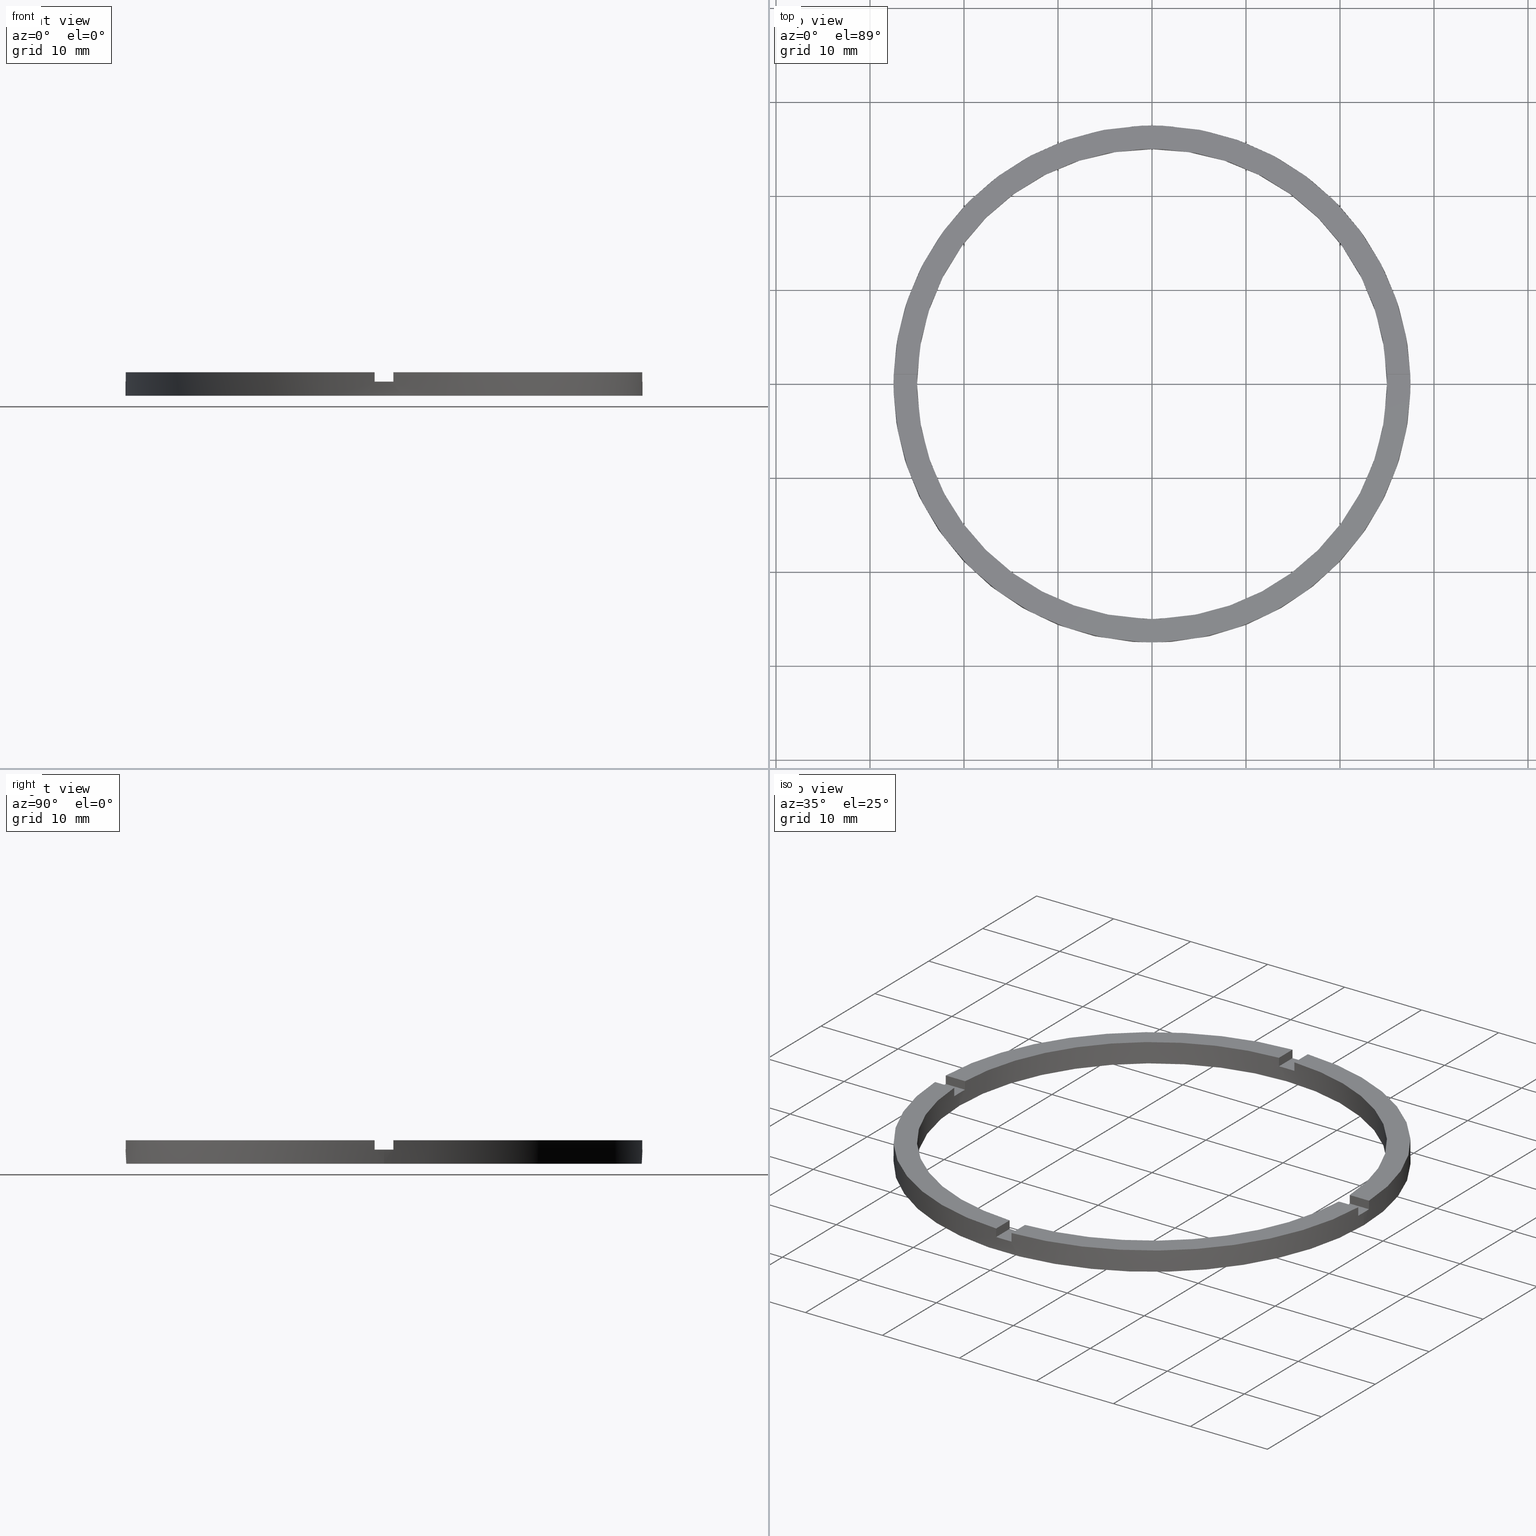
[diagram: canonical four-view strip — front | top / right | iso, engineering-drawing reading convention]
A machine part, canonical four-view strip (front | top / right | iso — engineering-drawing reading convention). The complete STEP part file that produces these views, byte-faithful:
ISO-10303-21;
HEADER;
FILE_DESCRIPTION (( 'STEP AP203' ),
    '1' );
FILE_NAME ('514115.step',
    '2024-12-26T02:38:56',
    ( 'MSI' ),
    ( '' ),
    'SwSTEP 2.0',
    'SolidWorks 2020',
    '' );
FILE_SCHEMA (( 'CONFIG_CONTROL_DESIGN' ));
ENDSEC;

DATA;
#1 = PRODUCT_DEFINITION ( 'δ֪', '', #14, #693 ) ;
#2 = COORDINATED_UNIVERSAL_TIME_OFFSET ( 8, 0, .AHEAD. ) ;
#3 = DIRECTION ( 'NONE',  ( 1.000000000000000000, 0.000000000000000000, 0.000000000000000000 ) ) ;
#4 = EDGE_CURVE ( 'NONE', #176, #85, #69, .T. ) ;
#5 = PERSON_AND_ORGANIZATION ( #19, #778 ) ;
#6 = LOCAL_TIME ( 10, 38, 56.00000000000000000, #511 ) ;
#7 = CARTESIAN_POINT ( 'NONE',  ( -17.50000000000018474, 0.9999999999999749090, 2.500000000000000000 ) ) ;
#8 = AXIS2_PLACEMENT_3D ( 'NONE', #655, #257, #367 ) ;
#9 = DATE_AND_TIME ( #523, #775 ) ;
#10 = CARTESIAN_POINT ( 'NONE',  ( 27.48181216732259458, 0.9999999999998430145, 2.500000000000000000 ) ) ;
#11 = APPROVAL_PERSON_ORGANIZATION ( #533, #635, #342 ) ;
#12 = COORDINATED_UNIVERSAL_TIME_OFFSET ( 8, 0, .AHEAD. ) ;
#13 = CARTESIAN_POINT ( 'NONE',  ( 27.50000000000000000, 3.367778697655221307E-15, 0.000000000000000000 ) ) ;
#14 = PRODUCT_DEFINITION_FORMATION_WITH_SPECIFIED_SOURCE ( '�κ�', '', #314, .NOT_KNOWN. ) ;
#15 = LOCAL_TIME ( 10, 38, 56.00000000000000000, #276 ) ;
#16 = LOCAL_TIME ( 10, 38, 56.00000000000000000, #267 ) ;
#17 = EDGE_CURVE ( 'NONE', #460, #621, #328, .T. ) ;
#18 = DIRECTION ( 'NONE',  ( -0.000000000000000000, -0.000000000000000000, -1.000000000000000000 ) ) ;
#19 = PERSON ( 'δָ��', 'δָ��', 'δָ��', ('δָ��'), ('δָ��'), ('δָ��') ) ;
#20 = AXIS2_PLACEMENT_3D ( 'NONE', #433, #81, #132 ) ;
#21 = DIRECTION ( 'NONE',  ( 0.000000000000000000, 0.000000000000000000, 1.000000000000000000 ) ) ;
#22 = DIRECTION ( 'NONE',  ( -0.000000000000000000, -0.000000000000000000, -1.000000000000000000 ) ) ;
#23 = CARTESIAN_POINT ( 'NONE',  ( -24.97999199359359679, 0.9999999999999735767, 2.500000000000000000 ) ) ;
#24 = PLANE ( 'NONE',  #411 ) ;
#25 = CARTESIAN_POINT ( 'NONE',  ( -1.000000000000026423, 17.50000000000000000, 2.500000000000000000 ) ) ;
#26 = EDGE_CURVE ( 'NONE', #460, #195, #579, .T. ) ;
#27 = DIRECTION ( 'NONE',  ( 1.000000000000000000, 0.000000000000000000, 0.000000000000000000 ) ) ;
#28 = DIRECTION ( 'NONE',  ( 0.000000000000000000, 0.000000000000000000, 1.000000000000000000 ) ) ;
#29 = EDGE_CURVE ( 'NONE', #210, #442, #581, .T. ) ;
#30 = DIRECTION ( 'NONE',  ( 1.000000000000000000, 0.000000000000000000, 0.000000000000000000 ) ) ;
#31 = PRODUCT_RELATED_PRODUCT_CATEGORY ( 'detail', '', ( #314 ) ) ;
#32 = DIRECTION ( 'NONE',  ( 0.000000000000000000, 0.000000000000000000, 1.000000000000000000 ) ) ;
#33 = DIRECTION ( 'NONE',  ( 1.301042606982605567E-16, -1.000000000000000000, 0.000000000000000000 ) ) ;
#34 = EDGE_CURVE ( 'NONE', #177, #114, #345, .T. ) ;
#35 = AXIS2_PLACEMENT_3D ( 'NONE', #435, #440, #227 ) ;
#36 = CARTESIAN_POINT ( 'NONE',  ( 0.000000000000000000, 0.000000000000000000, 1.500000000000000000 ) ) ;
#37 = DIRECTION ( 'NONE',  ( -0.000000000000000000, -0.000000000000000000, -1.000000000000000000 ) ) ;
#38 = AXIS2_PLACEMENT_3D ( 'NONE', #448, #484, #585 ) ;
#39 = EDGE_CURVE ( 'NONE', #199, #493, #331, .T. ) ;
#40 = DIRECTION ( 'NONE',  ( 1.000000000000000000, 0.000000000000000000, -0.000000000000000000 ) ) ;
#41 = CARTESIAN_POINT ( 'NONE',  ( -24.97999199359359679, 0.9999999999999735767, 1.500000000000000000 ) ) ;
#42 = AXIS2_PLACEMENT_3D ( 'NONE', #298, #112, #399 ) ;
#43 = PLANE ( 'NONE',  #294 ) ;
#44 = CARTESIAN_POINT ( 'NONE',  ( 0.000000000000000000, 0.000000000000000000, 1.500000000000000000 ) ) ;
#45 = DIRECTION ( 'NONE',  ( 1.000000000000000000, 0.000000000000000000, 0.000000000000000000 ) ) ;
#46 = DIRECTION ( 'NONE',  ( 0.000000000000000000, 0.000000000000000000, 1.000000000000000000 ) ) ;
#47 = DIRECTION ( 'NONE',  ( 0.000000000000000000, 0.000000000000000000, 1.000000000000000000 ) ) ;
#48 = DIRECTION ( 'NONE',  ( 1.000000000000000000, 0.000000000000000000, 0.000000000000000000 ) ) ;
#49 = DIRECTION ( 'NONE',  ( 0.000000000000000000, 0.000000000000000000, 1.000000000000000000 ) ) ;
#50 = CARTESIAN_POINT ( 'NONE',  ( 0.9999999999999735767, 27.48181216732259102, 2.500000000000000000 ) ) ;
#51 = DIRECTION ( 'NONE',  ( -0.000000000000000000, -0.000000000000000000, -1.000000000000000000 ) ) ;
#52 = EDGE_CURVE ( 'NONE', #713, #687, #65, .T. ) ;
#53 = CARTESIAN_POINT ( 'NONE',  ( 0.9999999999998389066, -17.50000000000018119, 2.500000000000000000 ) ) ;
#54 = CARTESIAN_POINT ( 'NONE',  ( 0.000000000000000000, 0.000000000000000000, 1.500000000000000000 ) ) ;
#55 = CIRCLE ( 'NONE', #110, 25.00000000000000000 ) ;
#56 = FACE_OUTER_BOUND ( 'NONE', #372, .T. ) ;
#57 = CARTESIAN_POINT ( 'NONE',  ( 0.9999999999999735767, 27.48181216732259102, 1.500000000000000000 ) ) ;
#58 = CIRCLE ( 'NONE', #174, 27.50000000000000000 ) ;
#59 = AXIS2_PLACEMENT_3D ( 'NONE', #544, #596, #709 ) ;
#60 = ORIENTED_EDGE ( 'NONE', *, *, #616, .F. ) ;
#61 = VECTOR ( 'NONE', #289, 1000.000000000000000 ) ;
#62 = FACE_OUTER_BOUND ( 'NONE', #231, .T. ) ;
#63 = VECTOR ( 'NONE', #771, 1000.000000000000000 ) ;
#64 = CARTESIAN_POINT ( 'NONE',  ( -1.000000000000160316, -24.97999199359358968, 1.500000000000000000 ) ) ;
#65 = LINE ( 'NONE', #615, #334 ) ;
#66 = CIRCLE ( 'NONE', #8, 25.00000000000000000 ) ;
#67 = LINE ( 'NONE', #25, #320 ) ;
#68 = CIRCLE ( 'NONE', #566, 25.00000000000000000 ) ;
#69 = CIRCLE ( 'NONE', #419, 27.50000000000000000 ) ;
#70 = VECTOR ( 'NONE', #105, 1000.000000000000000 ) ;
#71 = CARTESIAN_POINT ( 'NONE',  ( 0.9999999999999735767, 27.48181216732259102, 2.500000000000000000 ) ) ;
#72 = CARTESIAN_POINT ( 'NONE',  ( -27.50000000000000000, 0.000000000000000000, 2.500000000000000000 ) ) ;
#73 = VECTOR ( 'NONE', #429, 1000.000000000000000 ) ;
#74 = VERTEX_POINT ( 'NONE', #668 ) ;
#75 = FACE_OUTER_BOUND ( 'NONE', #719, .T. ) ;
#76 = ORIENTED_EDGE ( 'NONE', *, *, #667, .F. ) ;
#77 = LINE ( 'NONE', #712, #343 ) ;
#78 = ORIENTED_EDGE ( 'NONE', *, *, #301, .F. ) ;
#79 = PRODUCT_DEFINITION_SHAPE ( 'NONE', 'NONE',  #1 ) ;
#80 = VECTOR ( 'NONE', #415, 1000.000000000000000 ) ;
#81 = DIRECTION ( 'NONE',  ( 0.000000000000000000, 0.000000000000000000, 1.000000000000000000 ) ) ;
#82 = ORIENTED_EDGE ( 'NONE', *, *, #34, .F. ) ;
#83 = DIRECTION ( 'NONE',  ( -0.000000000000000000, -0.000000000000000000, -1.000000000000000000 ) ) ;
#84 = LINE ( 'NONE', #735, #92 ) ;
#85 = VERTEX_POINT ( 'NONE', #746 ) ;
#86 = LINE ( 'NONE', #7, #604 ) ;
#87 = PLANE ( 'NONE',  #514 ) ;
#88 = CARTESIAN_POINT ( 'NONE',  ( 0.9999999999998397948, -24.97999199359360034, 2.500000000000000000 ) ) ;
#89 = EDGE_CURVE ( 'NONE', #212, #713, #67, .T. ) ;
#90 = CARTESIAN_POINT ( 'NONE',  ( 0.000000000000000000, 0.000000000000000000, 1.500000000000000000 ) ) ;
#91 = AXIS2_PLACEMENT_3D ( 'NONE', #146, #471, #283 ) ;
#92 = VECTOR ( 'NONE', #476, 1000.000000000000000 ) ;
#93 = EDGE_CURVE ( 'NONE', #212, #493, #326, .T. ) ;
#94 = DIRECTION ( 'NONE',  ( 1.000000000000000000, 0.000000000000000000, 0.000000000000000000 ) ) ;
#95 = ORIENTED_EDGE ( 'NONE', *, *, #701, .T. ) ;
#96 = DIRECTION ( 'NONE',  ( 1.000000000000000000, 0.000000000000000000, 0.000000000000000000 ) ) ;
#97 = DIRECTION ( 'NONE',  ( 1.301042606982605567E-16, -1.000000000000000000, 0.000000000000000000 ) ) ;
#98 = ORIENTED_EDGE ( 'NONE', *, *, #555, .F. ) ;
#99 = APPLICATION_CONTEXT ( 'configuration controlled 3d designs of mechanical parts and assemblies' ) ;
#100 = CC_DESIGN_PERSON_AND_ORGANIZATION_ASSIGNMENT ( #516, #351, ( #752 ) ) ;
#101 = ORIENTED_EDGE ( 'NONE', *, *, #627, .T. ) ;
#102 = CARTESIAN_POINT ( 'NONE',  ( 0.000000000000000000, 0.000000000000000000, 2.500000000000000000 ) ) ;
#103 = DIRECTION ( 'NONE',  ( -1.000000000000000000, 0.000000000000000000, 0.000000000000000000 ) ) ;
#104 = ORIENTED_EDGE ( 'NONE', *, *, #592, .F. ) ;
#105 = DIRECTION ( 'NONE',  ( 1.000000000000000000, 1.734723475976807341E-16, -0.000000000000000000 ) ) ;
#106 = DIRECTION ( 'NONE',  ( 1.000000000000000000, -0.000000000000000000, 0.000000000000000000 ) ) ;
#107 = VERTEX_POINT ( 'NONE', #158 ) ;
#108 = CARTESIAN_POINT ( 'NONE',  ( -27.48181216732259102, 0.9999999999999731326, 2.500000000000000000 ) ) ;
#109 = EDGE_LOOP ( 'NONE', ( #380, #483, #134, #82 ) ) ;
#110 = AXIS2_PLACEMENT_3D ( 'NONE', #502, #118, #123 ) ;
#111 = CARTESIAN_POINT ( 'NONE',  ( -27.48181216732259102, -1.000000000000026867, 1.500000000000000000 ) ) ;
#112 = DIRECTION ( 'NONE',  ( 0.000000000000000000, 0.000000000000000000, 1.000000000000000000 ) ) ;
#113 = ORIENTED_EDGE ( 'NONE', *, *, #26, .T. ) ;
#114 = VERTEX_POINT ( 'NONE', #111 ) ;
#115 = DIRECTION ( 'NONE',  ( 0.000000000000000000, 0.000000000000000000, 1.000000000000000000 ) ) ;
#116 = VERTEX_POINT ( 'NONE', #178 ) ;
#117 = ORIENTED_EDGE ( 'NONE', *, *, #304, .T. ) ;
#118 = DIRECTION ( 'NONE',  ( 0.000000000000000000, 0.000000000000000000, 1.000000000000000000 ) ) ;
#119 = EDGE_CURVE ( 'NONE', #196, #199, #577, .T. ) ;
#120 = DIRECTION ( 'NONE',  ( -1.000000000000000000, 0.000000000000000000, 0.000000000000000000 ) ) ;
#121 = ADVANCED_FACE ( 'NONE', ( #574 ), #597, .T. ) ;
#122 = ORIENTED_EDGE ( 'NONE', *, *, #531, .F. ) ;
#123 = DIRECTION ( 'NONE',  ( 1.000000000000000000, 0.000000000000000000, 0.000000000000000000 ) ) ;
#124 = VERTEX_POINT ( 'NONE', #409 ) ;
#125 = AXIS2_PLACEMENT_3D ( 'NONE', #416, #253, #412 ) ;
#126 = VERTEX_POINT ( 'NONE', #373 ) ;
#127 = EDGE_CURVE ( 'NONE', #116, #126, #338, .T. ) ;
#128 = EDGE_CURVE ( 'NONE', #336, #737, #86, .T. ) ;
#129 = EDGE_LOOP ( 'NONE', ( #223, #113, #690, #451, #434, #190, #733, #628, #168, #208, #630, #173 ) ) ;
#130 = AXIS2_PLACEMENT_3D ( 'NONE', #665, #734, #272 ) ;
#131 = ORIENTED_EDGE ( 'NONE', *, *, #389, .F. ) ;
#132 = DIRECTION ( 'NONE',  ( 1.000000000000000000, 0.000000000000000000, -0.000000000000000000 ) ) ;
#133 = DIRECTION ( 'NONE',  ( -0.000000000000000000, -1.000000000000000000, -0.000000000000000000 ) ) ;
#134 = ORIENTED_EDGE ( 'NONE', *, *, #379, .F. ) ;
#135 = ADVANCED_FACE ( 'NONE', ( #349 ), #553, .F. ) ;
#136 = ORIENTED_EDGE ( 'NONE', *, *, #149, .T. ) ;
#137 = ORIENTED_EDGE ( 'NONE', *, *, #616, .T. ) ;
#138 = DIRECTION ( 'NONE',  ( -0.000000000000000000, -0.000000000000000000, -1.000000000000000000 ) ) ;
#139 = AXIS2_PLACEMENT_3D ( 'NONE', #159, #538, #96 ) ;
#140 = DIRECTION ( 'NONE',  ( 1.000000000000000000, 0.000000000000000000, 0.000000000000000000 ) ) ;
#141 = DIRECTION ( 'NONE',  ( -0.000000000000000000, 0.000000000000000000, 1.000000000000000000 ) ) ;
#142 = VECTOR ( 'NONE', #629, 1000.000000000000000 ) ;
#143 = APPLICATION_PROTOCOL_DEFINITION ( 'international standard', 'config_control_design', 1994, #99 ) ;
#144 = CARTESIAN_POINT ( 'NONE',  ( -27.48181216732259102, -1.000000000000026867, 2.500000000000000000 ) ) ;
#145 = CARTESIAN_POINT ( 'NONE',  ( 0.000000000000000000, 0.000000000000000000, 2.500000000000000000 ) ) ;
#146 = CARTESIAN_POINT ( 'NONE',  ( -17.50000000000018474, -1.000000000000025091, 1.500000000000000000 ) ) ;
#147 = DIRECTION ( 'NONE',  ( -0.000000000000000000, 0.000000000000000000, 1.000000000000000000 ) ) ;
#148 = CARTESIAN_POINT ( 'NONE',  ( 27.48181216732259458, 0.9999999999998430145, 1.500000000000000000 ) ) ;
#149 = EDGE_CURVE ( 'NONE', #698, #85, #608, .T. ) ;
#150 = APPROVAL_STATUS ( 'not_yet_approved' ) ;
#151 = PLANE ( 'NONE',  #663 ) ;
#152 = LINE ( 'NONE', #72, #426 ) ;
#153 = ORIENTED_EDGE ( 'NONE', *, *, #128, .F. ) ;
#154 = VECTOR ( 'NONE', #258, 1000.000000000000000 ) ;
#155 = EDGE_CURVE ( 'NONE', #176, #465, #84, .T. ) ;
#156 = AXIS2_PLACEMENT_3D ( 'NONE', #565, #636, #567 ) ;
#157 = CARTESIAN_POINT ( 'NONE',  ( 0.000000000000000000, 0.000000000000000000, 0.000000000000000000 ) ) ;
#158 = CARTESIAN_POINT ( 'NONE',  ( 24.97999199359358968, -1.000000000000157208, 1.500000000000000000 ) ) ;
#159 = CARTESIAN_POINT ( 'NONE',  ( 0.000000000000000000, 0.000000000000000000, 2.500000000000000000 ) ) ;
#160 = LINE ( 'NONE', #53, #671 ) ;
#161 = EDGE_CURVE ( 'NONE', #116, #460, #359, .T. ) ;
#162 = EDGE_CURVE ( 'NONE', #219, #388, #77, .T. ) ;
#163 = CIRCLE ( 'NONE', #139, 27.50000000000000000 ) ;
#164 = CARTESIAN_POINT ( 'NONE',  ( 25.00000000000000000, 3.061616997868383043E-15, 0.000000000000000000 ) ) ;
#165 = VERTEX_POINT ( 'NONE', #303 ) ;
#166 = LINE ( 'NONE', #23, #154 ) ;
#167 = CARTESIAN_POINT ( 'NONE',  ( -1.000000000000026423, 27.48181216732259102, 2.500000000000000000 ) ) ;
#168 = ORIENTED_EDGE ( 'NONE', *, *, #39, .F. ) ;
#169 = CARTESIAN_POINT ( 'NONE',  ( 27.48181216732259458, 0.9999999999998430145, 2.500000000000000000 ) ) ;
#170 = ORIENTED_EDGE ( 'NONE', *, *, #155, .T. ) ;
#171 = AXIS2_PLACEMENT_3D ( 'NONE', #643, #454, #48 ) ;
#172 = DIRECTION ( 'NONE',  ( -1.301042606982605567E-16, 1.000000000000000000, 0.000000000000000000 ) ) ;
#173 = ORIENTED_EDGE ( 'NONE', *, *, #667, .T. ) ;
#174 = AXIS2_PLACEMENT_3D ( 'NONE', #750, #386, #30 ) ;
#175 = EDGE_CURVE ( 'NONE', #463, #644, #347, .T. ) ;
#176 = VERTEX_POINT ( 'NONE', #587 ) ;
#177 = VERTEX_POINT ( 'NONE', #646 ) ;
#178 = CARTESIAN_POINT ( 'NONE',  ( 27.48181216732258392, -1.000000000000157208, 1.500000000000000000 ) ) ;
#179 = CARTESIAN_POINT ( 'NONE',  ( -1.000000000000160316, -24.97999199359358968, 2.500000000000000000 ) ) ;
#180 = EDGE_LOOP ( 'NONE', ( #104, #201, #350, #696 ) ) ;
#181 = EDGE_LOOP ( 'NONE', ( #619, #363, #496, #747, #60, #500 ) ) ;
#182 = VERTEX_POINT ( 'NONE', #609 ) ;
#183 = AXIS2_PLACEMENT_3D ( 'NONE', #550, #547, #46 ) ;
#184 = VERTEX_POINT ( 'NONE', #362 ) ;
#185 = CARTESIAN_POINT ( 'NONE',  ( 24.97999199359358968, -1.000000000000157208, 2.500000000000000000 ) ) ;
#186 = ORIENTED_EDGE ( 'NONE', *, *, #308, .F. ) ;
#187 = ORIENTED_EDGE ( 'NONE', *, *, #781, .F. ) ;
#188 = CARTESIAN_POINT ( 'NONE',  ( -1.000000000000026423, 27.48181216732259102, 1.500000000000000000 ) ) ;
#189 = DIRECTION ( 'NONE',  ( -1.301042606982605567E-16, 1.000000000000000000, -0.000000000000000000 ) ) ;
#190 = ORIENTED_EDGE ( 'NONE', *, *, #653, .T. ) ;
#191 = DIRECTION ( 'NONE',  ( -0.000000000000000000, -0.000000000000000000, -1.000000000000000000 ) ) ;
#192 = ORIENTED_EDGE ( 'NONE', *, *, #531, .T. ) ;
#193 = EDGE_LOOP ( 'NONE', ( #642, #676, #748, #432, #136, #708, #170, #715, #710, #760, #722, #192 ) ) ;
#194 = ORIENTED_EDGE ( 'NONE', *, *, #282, .T. ) ;
#195 = VERTEX_POINT ( 'NONE', #13 ) ;
#196 = VERTEX_POINT ( 'NONE', #422 ) ;
#197 = EDGE_CURVE ( 'NONE', #458, #184, #55, .T. ) ;
#198 = CARTESIAN_POINT ( 'NONE',  ( 27.50000000000000000, 3.367778697655221307E-15, 1.500000000000000000 ) ) ;
#199 = VERTEX_POINT ( 'NONE', #57 ) ;
#200 = CARTESIAN_POINT ( 'NONE',  ( -1.000000000000026423, 27.48181216732259102, 2.500000000000000000 ) ) ;
#201 = ORIENTED_EDGE ( 'NONE', *, *, #197, .F. ) ;
#202 = DIRECTION ( 'NONE',  ( -1.000000000000000000, -1.301042606982605567E-16, 0.000000000000000000 ) ) ;
#203 = ORIENTED_EDGE ( 'NONE', *, *, #626, .T. ) ;
#204 = CARTESIAN_POINT ( 'NONE',  ( 0.000000000000000000, 0.000000000000000000, 1.500000000000000000 ) ) ;
#205 = VERTEX_POINT ( 'NONE', #64 ) ;
#206 = DIRECTION ( 'NONE',  ( 1.000000000000000000, 0.000000000000000000, 0.000000000000000000 ) ) ;
#207 = EDGE_CURVE ( 'NONE', #107, #165, #312, .T. ) ;
#208 = ORIENTED_EDGE ( 'NONE', *, *, #437, .T. ) ;
#209 = CC_DESIGN_DATE_AND_TIME_ASSIGNMENT ( #9, #406, ( #752 ) ) ;
#210 = VERTEX_POINT ( 'NONE', #310 ) ;
#211 = DIRECTION ( 'NONE',  ( -1.000000000000000000, -4.336808689942017120E-17, -0.000000000000000000 ) ) ;
#212 = VERTEX_POINT ( 'NONE', #200 ) ;
#213 = EDGE_CURVE ( 'NONE', #694, #219, #68, .T. ) ;
#214 = CIRCLE ( 'NONE', #504, 25.00000000000000000 ) ;
#215 = ORIENTED_EDGE ( 'NONE', *, *, #175, .T. ) ;
#216 = LINE ( 'NONE', #287, #252 ) ;
#217 = DIRECTION ( 'NONE',  ( 0.000000000000000000, 0.000000000000000000, 1.000000000000000000 ) ) ;
#218 = ORIENTED_EDGE ( 'NONE', *, *, #288, .F. ) ;
#219 = VERTEX_POINT ( 'NONE', #391 ) ;
#220 = MECHANICAL_CONTEXT ( 'NONE', #99, 'mechanical' ) ;
#221 = VECTOR ( 'NONE', #296, 1000.000000000000000 ) ;
#222 = CARTESIAN_POINT ( 'NONE',  ( -1.000000000000161204, -17.50000000000018119, 1.500000000000000000 ) ) ;
#223 = ORIENTED_EDGE ( 'NONE', *, *, #17, .F. ) ;
#224 = CIRCLE ( 'NONE', #418, 27.50000000000000000 ) ;
#225 = ORIENTED_EDGE ( 'NONE', *, *, #89, .T. ) ;
#226 = CIRCLE ( 'NONE', #35, 25.00000000000000000 ) ;
#227 = DIRECTION ( 'NONE',  ( 1.000000000000000000, 0.000000000000000000, 0.000000000000000000 ) ) ;
#228 = EDGE_LOOP ( 'NONE', ( #319, #244, #356, #702 ) ) ;
#229 = LINE ( 'NONE', #236, #486 ) ;
#230 = AXIS2_PLACEMENT_3D ( 'NONE', #90, #672, #599 ) ;
#231 = EDGE_LOOP ( 'NONE', ( #469, #479, #78, #323 ) ) ;
#232 = APPROVAL_STATUS ( 'not_yet_approved' ) ;
#233 = EDGE_CURVE ( 'NONE', #438, #182, #333, .T. ) ;
#234 = ORIENTED_EDGE ( 'NONE', *, *, #637, .T. ) ;
#235 = CIRCLE ( 'NONE', #564, 27.50000000000000000 ) ;
#236 = CARTESIAN_POINT ( 'NONE',  ( -17.50000000000018474, 0.9999999999999749090, 1.500000000000000000 ) ) ;
#237 = CIRCLE ( 'NONE', #268, 25.00000000000000000 ) ;
#238 = ORIENTED_EDGE ( 'NONE', *, *, #317, .F. ) ;
#239 = APPROVAL_ROLE ( '' ) ;
#240 = VECTOR ( 'NONE', #33, 1000.000000000000000 ) ;
#241 = ORIENTED_EDGE ( 'NONE', *, *, #736, .F. ) ;
#242 = ORIENTED_EDGE ( 'NONE', *, *, #515, .F. ) ;
#243 = CARTESIAN_POINT ( 'NONE',  ( 0.9999999999999735767, 17.50000000000000000, 1.500000000000000000 ) ) ;
#244 = ORIENTED_EDGE ( 'NONE', *, *, #571, .T. ) ;
#245 = CIRCLE ( 'NONE', #537, 25.00000000000000000 ) ;
#246 = ORIENTED_EDGE ( 'NONE', *, *, #4, .T. ) ;
#247 = CARTESIAN_POINT ( 'NONE',  ( 0.000000000000000000, 0.000000000000000000, 0.000000000000000000 ) ) ;
#248 = VECTOR ( 'NONE', #324, 1000.000000000000000 ) ;
#249 = LINE ( 'NONE', #769, #470 ) ;
#250 = DIRECTION ( 'NONE',  ( 0.000000000000000000, 0.000000000000000000, 1.000000000000000000 ) ) ;
#251 = FACE_OUTER_BOUND ( 'NONE', #109, .T. ) ;
#252 = VECTOR ( 'NONE', #37, 1000.000000000000000 ) ;
#253 = DIRECTION ( 'NONE',  ( -4.336808689942017120E-17, 1.000000000000000000, 0.000000000000000000 ) ) ;
#254 = LINE ( 'NONE', #365, #221 ) ;
#255 = LOCAL_TIME ( 10, 38, 56.00000000000000000, #12 ) ;
#256 = PERSON_AND_ORGANIZATION ( #19, #778 ) ;
#257 = DIRECTION ( 'NONE',  ( 0.000000000000000000, 0.000000000000000000, 1.000000000000000000 ) ) ;
#258 = DIRECTION ( 'NONE',  ( 0.000000000000000000, 0.000000000000000000, 1.000000000000000000 ) ) ;
#259 = DIRECTION ( 'NONE',  ( 0.000000000000000000, 0.000000000000000000, 1.000000000000000000 ) ) ;
#260 = PERSON_AND_ORGANIZATION ( #19, #778 ) ;
#261 = CALENDAR_DATE ( 2024, 26, 12 ) ;
#262 = CC_DESIGN_APPROVAL ( #561, ( #752 ) ) ;
#263 = PLANE ( 'NONE',  #459 ) ;
#264 = APPROVAL_DATE_TIME ( #275, #561 ) ;
#265 = AXIS2_PLACEMENT_3D ( 'NONE', #763, #32, #140 ) ;
#266 = DIRECTION ( 'NONE',  ( 0.000000000000000000, 1.000000000000000000, 0.000000000000000000 ) ) ;
#267 = COORDINATED_UNIVERSAL_TIME_OFFSET ( 8, 0, .AHEAD. ) ;
#268 = AXIS2_PLACEMENT_3D ( 'NONE', #517, #141, #552 ) ;
#269 = CALENDAR_DATE ( 2024, 26, 12 ) ;
#270 = DATE_AND_TIME ( #269, #16 ) ;
#271 = CARTESIAN_POINT ( 'NONE',  ( -24.97999199359359679, -1.000000000000026423, 1.500000000000000000 ) ) ;
#272 = DIRECTION ( 'NONE',  ( -1.000000000000000000, -1.734723475976807341E-16, 0.000000000000000000 ) ) ;
#273 = PERSON_AND_ORGANIZATION ( #19, #778 ) ;
#274 = SHAPE_DEFINITION_REPRESENTATION ( #79, #527 ) ;
#275 = DATE_AND_TIME ( #261, #6 ) ;
#276 = COORDINATED_UNIVERSAL_TIME_OFFSET ( 8, 0, .AHEAD. ) ;
#277 = CARTESIAN_POINT ( 'NONE',  ( -1.000000000000160094, -27.48181216732258392, 2.500000000000000000 ) ) ;
#278 = ADVANCED_FACE ( 'NONE', ( #56 ), #87, .F. ) ;
#279 = PERSON_AND_ORGANIZATION ( #19, #778 ) ;
#280 = DIRECTION ( 'NONE',  ( 1.301042606982605567E-16, -1.000000000000000000, 0.000000000000000000 ) ) ;
#281 = DIRECTION ( 'NONE',  ( 0.000000000000000000, 0.000000000000000000, 1.000000000000000000 ) ) ;
#282 = EDGE_CURVE ( 'NONE', #463, #74, #572, .T. ) ;
#283 = DIRECTION ( 'NONE',  ( 1.000000000000000000, 1.734723475976807341E-16, 0.000000000000000000 ) ) ;
#284 = CARTESIAN_POINT ( 'NONE',  ( 0.9999999999998389066, -17.50000000000018119, 1.500000000000000000 ) ) ;
#285 = DIRECTION ( 'NONE',  ( 1.000000000000000000, 0.000000000000000000, 0.000000000000000000 ) ) ;
#286 = AXIS2_PLACEMENT_3D ( 'NONE', #462, #691, #103 ) ;
#287 = CARTESIAN_POINT ( 'NONE',  ( -24.97999199359359679, -1.000000000000026423, 2.500000000000000000 ) ) ;
#288 = EDGE_CURVE ( 'NONE', #195, #124, #58, .T. ) ;
#289 = DIRECTION ( 'NONE',  ( -1.301042606982605567E-16, 1.000000000000000000, -0.000000000000000000 ) ) ;
#290 = CARTESIAN_POINT ( 'NONE',  ( 0.000000000000000000, 0.000000000000000000, 1.500000000000000000 ) ) ;
#291 = DIRECTION ( 'NONE',  ( -1.000000000000000000, -1.734723475976807341E-16, 0.000000000000000000 ) ) ;
#292 = CC_DESIGN_DATE_AND_TIME_ASSIGNMENT ( #534, #779, ( #1 ) ) ;
#293 = PERSON_AND_ORGANIZATION_ROLE ( 'design_supplier' ) ;
#294 = AXIS2_PLACEMENT_3D ( 'NONE', #102, #632, #357 ) ;
#295 = APPLICATION_CONTEXT ( 'configuration controlled 3d designs of mechanical parts and assemblies' ) ;
#296 = DIRECTION ( 'NONE',  ( 0.000000000000000000, 0.000000000000000000, 1.000000000000000000 ) ) ;
#297 = DIRECTION ( 'NONE',  ( -0.000000000000000000, -0.000000000000000000, -1.000000000000000000 ) ) ;
#298 = CARTESIAN_POINT ( 'NONE',  ( 0.000000000000000000, 0.000000000000000000, 2.500000000000000000 ) ) ;
#299 = PLANE ( 'NONE',  #125 ) ;
#300 = DIRECTION ( 'NONE',  ( 1.000000000000000000, 1.301042606982605567E-16, 0.000000000000000000 ) ) ;
#301 = EDGE_CURVE ( 'NONE', #85, #647, #593, .T. ) ;
#302 = ADVANCED_FACE ( 'NONE', ( #325 ), #355, .T. ) ;
#303 = CARTESIAN_POINT ( 'NONE',  ( 24.97999199359358968, -1.000000000000157208, 2.500000000000000000 ) ) ;
#304 = EDGE_CURVE ( 'NONE', #727, #165, #578, .T. ) ;
#305 = AXIS2_PLACEMENT_3D ( 'NONE', #573, #520, #45 ) ;
#306 = CARTESIAN_POINT ( 'NONE',  ( 0.9999999999998400169, -27.48181216732259458, 2.500000000000000000 ) ) ;
#307 = EDGE_CURVE ( 'NONE', #177, #458, #337, .T. ) ;
#308 = EDGE_CURVE ( 'NONE', #182, #644, #335, .T. ) ;
#309 = CARTESIAN_POINT ( 'NONE',  ( 17.49999999999999645, -1.000000000000157430, 1.500000000000000000 ) ) ;
#310 = CARTESIAN_POINT ( 'NONE',  ( -27.48181216732259102, 0.9999999999999731326, 1.500000000000000000 ) ) ;
#311 = ADVANCED_FACE ( 'NONE', ( #62 ), #263, .F. ) ;
#312 = LINE ( 'NONE', #185, #570 ) ;
#313 = CC_DESIGN_PERSON_AND_ORGANIZATION_ASSIGNMENT ( #273, #692, ( #314 ) ) ;
#314 = PRODUCT ( '514115', '514115', '', ( #220 ) ) ;
#315 = AXIS2_PLACEMENT_3D ( 'NONE', #157, #540, #645 ) ;
#316 = PLANE ( 'NONE',  #20 ) ;
#317 = EDGE_CURVE ( 'NONE', #713, #336, #66, .T. ) ;
#318 = DIRECTION ( 'NONE',  ( 1.000000000000000000, 0.000000000000000000, 0.000000000000000000 ) ) ;
#319 = ORIENTED_EDGE ( 'NONE', *, *, #39, .T. ) ;
#320 = VECTOR ( 'NONE', #133, 1000.000000000000000 ) ;
#321 = DIRECTION ( 'NONE',  ( 0.000000000000000000, -0.000000000000000000, 1.000000000000000000 ) ) ;
#322 = UNCERTAINTY_MEASURE_WITH_UNIT (LENGTH_MEASURE( 1.000000000000000082E-05 ), #624, 'distance_accuracy_value', 'NONE');
#323 = ORIENTED_EDGE ( 'NONE', *, *, #149, .F. ) ;
#324 = DIRECTION ( 'NONE',  ( 1.000000000000000000, 4.336808689942018352E-17, 0.000000000000000000 ) ) ;
#325 = FACE_OUTER_BOUND ( 'NONE', #706, .T. ) ;
#326 = LINE ( 'NONE', #167, #594 ) ;
#327 = DIRECTION ( 'NONE',  ( 1.000000000000000000, 0.000000000000000000, -0.000000000000000000 ) ) ;
#328 = CIRCLE ( 'NONE', #473, 27.50000000000000000 ) ;
#329 = ORIENTED_EDGE ( 'NONE', *, *, #662, .F. ) ;
#330 = DIRECTION ( 'NONE',  ( 0.000000000000000000, 0.000000000000000000, 1.000000000000000000 ) ) ;
#331 = CIRCLE ( 'NONE', #431, 27.50000000000000000 ) ;
#332 = APPLICATION_PROTOCOL_DEFINITION ( 'international standard', 'config_control_design', 1994, #295 ) ;
#333 = LINE ( 'NONE', #620, #583 ) ;
#334 = VECTOR ( 'NONE', #83, 1000.000000000000000 ) ;
#335 = CIRCLE ( 'NONE', #315, 25.00000000000000000 ) ;
#336 = VERTEX_POINT ( 'NONE', #718 ) ;
#337 = LINE ( 'NONE', #575, #70 ) ;
#338 = LINE ( 'NONE', #417, #607 ) ;
#339 = DIRECTION ( 'NONE',  ( 1.000000000000000000, 0.000000000000000000, -0.000000000000000000 ) ) ;
#340 = CIRCLE ( 'NONE', #541, 27.50000000000000000 ) ;
#341 = ORIENTED_EDGE ( 'NONE', *, *, #410, .F. ) ;
#342 = APPROVAL_ROLE ( '' ) ;
#343 = VECTOR ( 'NONE', #266, 1000.000000000000000 ) ;
#344 = EDGE_LOOP ( 'NONE', ( #122, #218 ) ) ;
#345 = LINE ( 'NONE', #144, #605 ) ;
#346 = EDGE_CURVE ( 'NONE', #205, #184, #595, .T. ) ;
#347 = LINE ( 'NONE', #542, #568 ) ;
#348 = DIRECTION ( 'NONE',  ( 1.000000000000000000, 4.336808689942018352E-17, 0.000000000000000000 ) ) ;
#349 = FACE_OUTER_BOUND ( 'NONE', #755, .T. ) ;
#350 = ORIENTED_EDGE ( 'NONE', *, *, #307, .F. ) ;
#351 = PERSON_AND_ORGANIZATION_ROLE ( 'classification_officer' ) ;
#352 = DIRECTION ( 'NONE',  ( 0.000000000000000000, 0.000000000000000000, -1.000000000000000000 ) ) ;
#353 = PERSON_AND_ORGANIZATION_ROLE ( 'creator' ) ;
#354 = ORIENTED_EDGE ( 'NONE', *, *, #317, .T. ) ;
#355 = PLANE ( 'NONE',  #364 ) ;
#356 = ORIENTED_EDGE ( 'NONE', *, *, #461, .F. ) ;
#357 = DIRECTION ( 'NONE',  ( 1.000000000000000000, 0.000000000000000000, -0.000000000000000000 ) ) ;
#358 = DIRECTION ( 'NONE',  ( 1.000000000000000000, 0.000000000000000000, 0.000000000000000000 ) ) ;
#359 = CIRCLE ( 'NONE', #546, 27.50000000000000000 ) ;
#360 = ADVANCED_FACE ( 'NONE', ( #75 ), #661, .T. ) ;
#361 = ORIENTED_EDGE ( 'NONE', *, *, #590, .F. ) ;
#362 = CARTESIAN_POINT ( 'NONE',  ( -1.000000000000160316, -24.97999199359358968, 2.500000000000000000 ) ) ;
#363 = ORIENTED_EDGE ( 'NONE', *, *, #17, .T. ) ;
#364 = AXIS2_PLACEMENT_3D ( 'NONE', #545, #49, #327 ) ;
#365 = CARTESIAN_POINT ( 'NONE',  ( -27.48181216732259102, 0.9999999999999731326, 2.500000000000000000 ) ) ;
#366 = EDGE_CURVE ( 'NONE', #212, #737, #340, .T. ) ;
#367 = DIRECTION ( 'NONE',  ( 1.000000000000000000, 0.000000000000000000, 0.000000000000000000 ) ) ;
#368 = ADVANCED_FACE ( 'NONE', ( #430 ), #43, .T. ) ;
#369 = CARTESIAN_POINT ( 'NONE',  ( 0.000000000000000000, 0.000000000000000000, 2.500000000000000000 ) ) ;
#370 = ORIENTED_EDGE ( 'NONE', *, *, #127, .F. ) ;
#371 = DIRECTION ( 'NONE',  ( -0.000000000000000000, -0.000000000000000000, -1.000000000000000000 ) ) ;
#372 = EDGE_LOOP ( 'NONE', ( #361, #765, #586, #503 ) ) ;
#373 = CARTESIAN_POINT ( 'NONE',  ( 27.48181216732258392, -1.000000000000157208, 2.500000000000000000 ) ) ;
#374 = ORIENTED_EDGE ( 'NONE', *, *, #366, .T. ) ;
#375 = ADVANCED_FACE ( 'NONE', ( #423 ), #151, .F. ) ;
#376 = ORIENTED_EDGE ( 'NONE', *, *, #89, .F. ) ;
#377 = DIRECTION ( 'NONE',  ( 4.336808689942018352E-17, -1.000000000000000000, 0.000000000000000000 ) ) ;
#378 = EDGE_CURVE ( 'NONE', #177, #465, #163, .T. ) ;
#379 = EDGE_CURVE ( 'NONE', #114, #398, #677, .T. ) ;
#380 = ORIENTED_EDGE ( 'NONE', *, *, #307, .T. ) ;
#381 = ADVANCED_FACE ( 'NONE', ( #684 ), #679, .T. ) ;
#382 = ORIENTED_EDGE ( 'NONE', *, *, #701, .F. ) ;
#383 = CARTESIAN_POINT ( 'NONE',  ( 0.000000000000000000, 0.000000000000000000, 1.500000000000000000 ) ) ;
#384 = ORIENTED_EDGE ( 'NONE', *, *, #162, .F. ) ;
#385 = CARTESIAN_POINT ( 'NONE',  ( 0.000000000000000000, 0.000000000000000000, 1.500000000000000000 ) ) ;
#386 = DIRECTION ( 'NONE',  ( 0.000000000000000000, 0.000000000000000000, 1.000000000000000000 ) ) ;
#387 = AXIS2_PLACEMENT_3D ( 'NONE', #563, #22, #675 ) ;
#388 = VERTEX_POINT ( 'NONE', #50 ) ;
#389 = EDGE_CURVE ( 'NONE', #698, #727, #160, .T. ) ;
#390 = ORIENTED_EDGE ( 'NONE', *, *, #52, .T. ) ;
#391 = CARTESIAN_POINT ( 'NONE',  ( 0.9999999999999735767, 24.97999199359359679, 2.500000000000000000 ) ) ;
#392 = EDGE_LOOP ( 'NONE', ( #602, #589, #101, #370 ) ) ;
#393 = AXIS2_PLACEMENT_3D ( 'NONE', #611, #330, #285 ) ;
#394 = EDGE_LOOP ( 'NONE', ( #485, #425, #600, #404 ) ) ;
#395 = CARTESIAN_POINT ( 'NONE',  ( -27.50000000000000000, 0.000000000000000000, 1.500000000000000000 ) ) ;
#396 = CARTESIAN_POINT ( 'NONE',  ( 24.97999199359360034, 0.9999999999998430145, 2.500000000000000000 ) ) ;
#397 = ORIENTED_EDGE ( 'NONE', *, *, #627, .F. ) ;
#398 = VERTEX_POINT ( 'NONE', #271 ) ;
#399 = DIRECTION ( 'NONE',  ( 1.000000000000000000, 0.000000000000000000, -0.000000000000000000 ) ) ;
#400 = DIRECTION ( 'NONE',  ( 0.000000000000000000, 0.000000000000000000, 1.000000000000000000 ) ) ;
#401 = ORIENTED_EDGE ( 'NONE', *, *, #304, .F. ) ;
#402 = PERSON_AND_ORGANIZATION_ROLE ( 'creator' ) ;
#403 = ORIENTED_EDGE ( 'NONE', *, *, #446, .F. ) ;
#404 = ORIENTED_EDGE ( 'NONE', *, *, #653, .F. ) ;
#405 = CARTESIAN_POINT ( 'NONE',  ( 17.49999999999999645, -1.000000000000157430, 2.500000000000000000 ) ) ;
#406 = DATE_TIME_ROLE ( 'classification_date' ) ;
#407 = SECURITY_CLASSIFICATION_LEVEL ( 'unclassified' ) ;
#408 = ORIENTED_EDGE ( 'NONE', *, *, #175, .F. ) ;
#409 = CARTESIAN_POINT ( 'NONE',  ( -27.50000000000000000, 0.000000000000000000, 0.000000000000000000 ) ) ;
#410 = EDGE_CURVE ( 'NONE', #683, #336, #166, .T. ) ;
#411 = AXIS2_PLACEMENT_3D ( 'NONE', #309, #377, #559 ) ;
#412 = DIRECTION ( 'NONE',  ( -1.000000000000000000, -4.336808689942017120E-17, 0.000000000000000000 ) ) ;
#413 = EDGE_CURVE ( 'NONE', #442, #124, #152, .T. ) ;
#414 = DIRECTION ( 'NONE',  ( 0.000000000000000000, 0.000000000000000000, 1.000000000000000000 ) ) ;
#415 = DIRECTION ( 'NONE',  ( -0.000000000000000000, -0.000000000000000000, -1.000000000000000000 ) ) ;
#416 = CARTESIAN_POINT ( 'NONE',  ( 17.49999999999999645, 0.9999999999998425704, 1.500000000000000000 ) ) ;
#417 = CARTESIAN_POINT ( 'NONE',  ( 27.48181216732258392, -1.000000000000157208, 2.500000000000000000 ) ) ;
#418 = AXIS2_PLACEMENT_3D ( 'NONE', #482, #115, #358 ) ;
#419 = AXIS2_PLACEMENT_3D ( 'NONE', #753, #147, #27 ) ;
#420 = ADVANCED_FACE ( 'NONE', ( #428 ), #612, .F. ) ;
#421 = FACE_BOUND ( 'NONE', #625, .T. ) ;
#422 = CARTESIAN_POINT ( 'NONE',  ( 0.9999999999999735767, 24.97999199359359679, 1.500000000000000000 ) ) ;
#423 = FACE_OUTER_BOUND ( 'NONE', #638, .T. ) ;
#424 = VECTOR ( 'NONE', #445, 1000.000000000000000 ) ;
#425 = ORIENTED_EDGE ( 'NONE', *, *, #410, .T. ) ;
#426 = VECTOR ( 'NONE', #371, 1000.000000000000000 ) ;
#427 = EDGE_LOOP ( 'NONE', ( #397, #401, #131, #730 ) ) ;
#428 = FACE_OUTER_BOUND ( 'NONE', #394, .T. ) ;
#429 = DIRECTION ( 'NONE',  ( 0.000000000000000000, 1.000000000000000000, 0.000000000000000000 ) ) ;
#430 = FACE_OUTER_BOUND ( 'NONE', #427, .T. ) ;
#431 = AXIS2_PLACEMENT_3D ( 'NONE', #385, #512, #558 ) ;
#432 = ORIENTED_EDGE ( 'NONE', *, *, #507, .F. ) ;
#433 = CARTESIAN_POINT ( 'NONE',  ( 0.000000000000000000, 0.000000000000000000, 0.000000000000000000 ) ) ;
#434 = ORIENTED_EDGE ( 'NONE', *, *, #29, .F. ) ;
#435 = CARTESIAN_POINT ( 'NONE',  ( 0.000000000000000000, 0.000000000000000000, 1.500000000000000000 ) ) ;
#436 = ADVANCED_FACE ( 'NONE', ( #682, #421 ), #316, .F. ) ;
#437 = EDGE_CURVE ( 'NONE', #199, #388, #669, .T. ) ;
#438 = VERTEX_POINT ( 'NONE', #757 ) ;
#439 = ORIENTED_EDGE ( 'NONE', *, *, #308, .T. ) ;
#440 = DIRECTION ( 'NONE',  ( 0.000000000000000000, -0.000000000000000000, 1.000000000000000000 ) ) ;
#441 = PLANE ( 'NONE',  #156 ) ;
#442 = VERTEX_POINT ( 'NONE', #395 ) ;
#443 = APPROVAL ( #150, 'δָ��' ) ;
#444 = CLOSED_SHELL ( 'NONE', ( #613, #121, #360, #302, #368, #509, #436, #381, #556, #705, #420, #491, #311, #278, #745, #649, #560, #591, #135, #375, #480 ) ) ;
#445 = DIRECTION ( 'NONE',  ( 0.000000000000000000, 0.000000000000000000, 1.000000000000000000 ) ) ;
#446 = EDGE_CURVE ( 'NONE', #196, #219, #657, .T. ) ;
#447 = ORIENTED_EDGE ( 'NONE', *, *, #233, .T. ) ;
#448 = CARTESIAN_POINT ( 'NONE',  ( 0.000000000000000000, 0.000000000000000000, 2.500000000000000000 ) ) ;
#449 = ORIENTED_EDGE ( 'NONE', *, *, #207, .F. ) ;
#450 = AXIS2_PLACEMENT_3D ( 'NONE', #543, #707, #588 ) ;
#451 = ORIENTED_EDGE ( 'NONE', *, *, #413, .F. ) ;
#452 = CARTESIAN_POINT ( 'NONE',  ( 25.00000000000000000, 3.061616997868383043E-15, 1.500000000000000000 ) ) ;
#453 = ORIENTED_EDGE ( 'NONE', *, *, #233, .F. ) ;
#454 = DIRECTION ( 'NONE',  ( 0.000000000000000000, 0.000000000000000000, 1.000000000000000000 ) ) ;
#455 = ORIENTED_EDGE ( 'NONE', *, *, #52, .F. ) ;
#456 = EDGE_LOOP ( 'NONE', ( #466, #654, #762, #610, #241, #203 ) ) ;
#457 = CC_DESIGN_APPROVAL ( #635, ( #1 ) ) ;
#458 = VERTEX_POINT ( 'NONE', #622 ) ;
#459 = AXIS2_PLACEMENT_3D ( 'NONE', #651, #300, #172 ) ;
#460 = VERTEX_POINT ( 'NONE', #198 ) ;
#461 = EDGE_CURVE ( 'NONE', #196, #687, #226, .T. ) ;
#462 = CARTESIAN_POINT ( 'NONE',  ( 0.000000000000000000, 0.000000000000000000, 2.500000000000000000 ) ) ;
#463 = VERTEX_POINT ( 'NONE', #452 ) ;
#464 = DIRECTION ( 'NONE',  ( 0.000000000000000000, 0.000000000000000000, 1.000000000000000000 ) ) ;
#465 = VERTEX_POINT ( 'NONE', #277 ) ;
#466 = ORIENTED_EDGE ( 'NONE', *, *, #29, .T. ) ;
#467 = ORIENTED_EDGE ( 'NONE', *, *, #213, .T. ) ;
#468 = FACE_OUTER_BOUND ( 'NONE', #392, .T. ) ;
#469 = ORIENTED_EDGE ( 'NONE', *, *, #389, .T. ) ;
#470 = VECTOR ( 'NONE', #211, 1000.000000000000000 ) ;
#471 = DIRECTION ( 'NONE',  ( 1.734723475976807341E-16, -1.000000000000000000, 0.000000000000000000 ) ) ;
#472 = DIRECTION ( 'NONE',  ( -0.000000000000000000, -0.000000000000000000, -1.000000000000000000 ) ) ;
#473 = AXIS2_PLACEMENT_3D ( 'NONE', #204, #281, #318 ) ;
#474 = EDGE_LOOP ( 'NONE', ( #408, #194, #740, #467, #403, #603, #455, #354, #341, #739, #447, #329 ) ) ;
#475 = LINE ( 'NONE', #535, #499 ) ;
#476 = DIRECTION ( 'NONE',  ( 0.000000000000000000, 0.000000000000000000, 1.000000000000000000 ) ) ;
#477 = EDGE_LOOP ( 'NONE', ( #95, #234, #98, #76 ) ) ;
#478 = CIRCLE ( 'NONE', #171, 27.50000000000000000 ) ;
#479 = ORIENTED_EDGE ( 'NONE', *, *, #582, .T. ) ;
#480 = ADVANCED_FACE ( 'NONE', ( #743 ), #774, .T. ) ;
#481 = CIRCLE ( 'NONE', #393, 27.50000000000000000 ) ;
#482 = CARTESIAN_POINT ( 'NONE',  ( 0.000000000000000000, 0.000000000000000000, 2.500000000000000000 ) ) ;
#483 = ORIENTED_EDGE ( 'NONE', *, *, #781, .T. ) ;
#484 = DIRECTION ( 'NONE',  ( 0.000000000000000000, 0.000000000000000000, 1.000000000000000000 ) ) ;
#485 = ORIENTED_EDGE ( 'NONE', *, *, #626, .F. ) ;
#486 = VECTOR ( 'NONE', #291, 1000.000000000000000 ) ;
#487 = DIRECTION ( 'NONE',  ( -1.000000000000000000, -1.734723475976807341E-16, 0.000000000000000000 ) ) ;
#488 = FACE_OUTER_BOUND ( 'NONE', #477, .T. ) ;
#489 = DIRECTION ( 'NONE',  ( -0.000000000000000000, -0.000000000000000000, -1.000000000000000000 ) ) ;
#490 = ORIENTED_EDGE ( 'NONE', *, *, #437, .F. ) ;
#491 = ADVANCED_FACE ( 'NONE', ( #741 ), #557, .T. ) ;
#492 = VECTOR ( 'NONE', #138, 1000.000000000000000 ) ;
#493 = VERTEX_POINT ( 'NONE', #188 ) ;
#494 = FACE_OUTER_BOUND ( 'NONE', #720, .T. ) ;
#495 = MANIFOLD_SOLID_BREP ( '�г�-����1', #444 ) ;
#496 = ORIENTED_EDGE ( 'NONE', *, *, #555, .T. ) ;
#497 = VECTOR ( 'NONE', #348, 1000.000000000000000 ) ;
#498 = ORIENTED_EDGE ( 'NONE', *, *, #93, .F. ) ;
#499 = VECTOR ( 'NONE', #489, 1000.000000000000000 ) ;
#500 = ORIENTED_EDGE ( 'NONE', *, *, #689, .T. ) ;
#501 = VECTOR ( 'NONE', #670, 1000.000000000000000 ) ;
#502 = CARTESIAN_POINT ( 'NONE',  ( 0.000000000000000000, 0.000000000000000000, 2.500000000000000000 ) ) ;
#503 = ORIENTED_EDGE ( 'NONE', *, *, #155, .F. ) ;
#504 = AXIS2_PLACEMENT_3D ( 'NONE', #44, #777, #569 ) ;
#505 = LINE ( 'NONE', #744, #726 ) ;
#506 = LINE ( 'NONE', #618, #501 ) ;
#507 = EDGE_CURVE ( 'NONE', #698, #126, #235, .T. ) ;
#508 = FACE_OUTER_BOUND ( 'NONE', #180, .T. ) ;
#509 = ADVANCED_FACE ( 'NONE', ( #508 ), #519, .T. ) ;
#510 = AXIS2_PLACEMENT_3D ( 'NONE', #36, #321, #666 ) ;
#511 = COORDINATED_UNIVERSAL_TIME_OFFSET ( 8, 0, .AHEAD. ) ;
#512 = DIRECTION ( 'NONE',  ( 0.000000000000000000, -0.000000000000000000, 1.000000000000000000 ) ) ;
#513 = AXIS2_PLACEMENT_3D ( 'NONE', #247, #532, #94 ) ;
#514 = AXIS2_PLACEMENT_3D ( 'NONE', #222, #202, #280 ) ;
#515 = EDGE_CURVE ( 'NONE', #205, #647, #237, .T. ) ;
#516 = PERSON_AND_ORGANIZATION ( #19, #778 ) ;
#517 = CARTESIAN_POINT ( 'NONE',  ( 0.000000000000000000, 0.000000000000000000, 1.500000000000000000 ) ) ;
#518 = DATE_AND_TIME ( #530, #15 ) ;
#519 = PLANE ( 'NONE',  #703 ) ;
#520 = DIRECTION ( 'NONE',  ( 0.000000000000000000, 0.000000000000000000, 1.000000000000000000 ) ) ;
#521 = PERSON_AND_ORGANIZATION ( #19, #778 ) ;
#522 = APPROVAL_PERSON_ORGANIZATION ( #256, #443, #239 ) ;
#523 = CALENDAR_DATE ( 2024, 26, 12 ) ;
#524 = DIRECTION ( 'NONE',  ( -1.000000000000000000, -4.336808689942017120E-17, -0.000000000000000000 ) ) ;
#525 = APPROVAL_DATE_TIME ( #270, #443 ) ;
#526 = CARTESIAN_POINT ( 'NONE',  ( 0.9999999999998400169, -27.48181216732259458, 2.500000000000000000 ) ) ;
#527 = ADVANCED_BREP_SHAPE_REPRESENTATION ( '514115', ( #495, #513 ), #554 ) ;
#528 = CALENDAR_DATE ( 2024, 26, 12 ) ;
#529 = CARTESIAN_POINT ( 'NONE',  ( 0.000000000000000000, 0.000000000000000000, 2.500000000000000000 ) ) ;
#530 = CALENDAR_DATE ( 2024, 26, 12 ) ;
#531 = EDGE_CURVE ( 'NONE', #124, #195, #481, .T. ) ;
#532 = DIRECTION ( 'NONE',  ( 0.000000000000000000, 0.000000000000000000, 1.000000000000000000 ) ) ;
#533 = PERSON_AND_ORGANIZATION ( #19, #778 ) ;
#534 = DATE_AND_TIME ( #528, #255 ) ;
#535 = CARTESIAN_POINT ( 'NONE',  ( 24.97999199359360034, 0.9999999999998430145, 2.500000000000000000 ) ) ;
#536 = APPROVAL_STATUS ( 'not_yet_approved' ) ;
#537 = AXIS2_PLACEMENT_3D ( 'NONE', #290, #464, #3 ) ;
#538 = DIRECTION ( 'NONE',  ( 0.000000000000000000, 0.000000000000000000, 1.000000000000000000 ) ) ;
#539 = CARTESIAN_POINT ( 'NONE',  ( 17.49999999999999645, -1.000000000000157430, 1.500000000000000000 ) ) ;
#540 = DIRECTION ( 'NONE',  ( 0.000000000000000000, 0.000000000000000000, 1.000000000000000000 ) ) ;
#541 = AXIS2_PLACEMENT_3D ( 'NONE', #529, #47, #782 ) ;
#542 = CARTESIAN_POINT ( 'NONE',  ( 25.00000000000000000, 3.061616997868383043E-15, 2.500000000000000000 ) ) ;
#543 = CARTESIAN_POINT ( 'NONE',  ( 0.000000000000000000, 0.000000000000000000, 2.500000000000000000 ) ) ;
#544 = CARTESIAN_POINT ( 'NONE',  ( 0.000000000000000000, 0.000000000000000000, 0.000000000000000000 ) ) ;
#545 = CARTESIAN_POINT ( 'NONE',  ( 0.000000000000000000, 0.000000000000000000, 2.500000000000000000 ) ) ;
#546 = AXIS2_PLACEMENT_3D ( 'NONE', #54, #21, #652 ) ;
#547 = DIRECTION ( 'NONE',  ( -1.000000000000000000, 0.000000000000000000, 0.000000000000000000 ) ) ;
#548 = CARTESIAN_POINT ( 'NONE',  ( 0.9999999999998397948, -24.97999199359360034, 1.500000000000000000 ) ) ;
#549 = AXIS2_PLACEMENT_3D ( 'NONE', #383, #217, #339 ) ;
#550 = CARTESIAN_POINT ( 'NONE',  ( -1.000000000000026423, 17.50000000000000000, 1.500000000000000000 ) ) ;
#551 = DIRECTION ( 'NONE',  ( 0.000000000000000000, 0.000000000000000000, 1.000000000000000000 ) ) ;
#552 = DIRECTION ( 'NONE',  ( 1.000000000000000000, 0.000000000000000000, 0.000000000000000000 ) ) ;
#553 = PLANE ( 'NONE',  #183 ) ;
#554 =( GEOMETRIC_REPRESENTATION_CONTEXT ( 3 ) GLOBAL_UNCERTAINTY_ASSIGNED_CONTEXT ( ( #322 ) ) GLOBAL_UNIT_ASSIGNED_CONTEXT ( ( #624, #686, #680 ) ) REPRESENTATION_CONTEXT ( 'NONE', 'WORKASPACE' ) );
#555 = EDGE_CURVE ( 'NONE', #621, #74, #505, .T. ) ;
#556 = ADVANCED_FACE ( 'NONE', ( #738 ), #759, .F. ) ;
#557 = PLANE ( 'NONE',  #549 ) ;
#558 = DIRECTION ( 'NONE',  ( 1.000000000000000000, 0.000000000000000000, 0.000000000000000000 ) ) ;
#559 = DIRECTION ( 'NONE',  ( 1.000000000000000000, 4.336808689942018352E-17, 0.000000000000000000 ) ) ;
#560 = ADVANCED_FACE ( 'NONE', ( #468 ), #24, .F. ) ;
#561 = APPROVAL ( #536, 'δָ��' ) ;
#562 = DIRECTION ( 'NONE',  ( 1.000000000000000000, 0.000000000000000000, 0.000000000000000000 ) ) ;
#563 = CARTESIAN_POINT ( 'NONE',  ( 0.000000000000000000, 0.000000000000000000, 2.500000000000000000 ) ) ;
#564 = AXIS2_PLACEMENT_3D ( 'NONE', #145, #400, #206 ) ;
#565 = CARTESIAN_POINT ( 'NONE',  ( 0.000000000000000000, 0.000000000000000000, 1.500000000000000000 ) ) ;
#566 = AXIS2_PLACEMENT_3D ( 'NONE', #369, #414, #562 ) ;
#567 = DIRECTION ( 'NONE',  ( 1.000000000000000000, 0.000000000000000000, 0.000000000000000000 ) ) ;
#568 = VECTOR ( 'NONE', #601, 1000.000000000000000 ) ;
#569 = DIRECTION ( 'NONE',  ( 1.000000000000000000, 0.000000000000000000, 0.000000000000000000 ) ) ;
#570 = VECTOR ( 'NONE', #259, 1000.000000000000000 ) ;
#571 = EDGE_CURVE ( 'NONE', #493, #687, #506, .T. ) ;
#572 = CIRCLE ( 'NONE', #230, 25.00000000000000000 ) ;
#573 = CARTESIAN_POINT ( 'NONE',  ( 0.000000000000000000, 0.000000000000000000, 1.500000000000000000 ) ) ;
#574 = FACE_OUTER_BOUND ( 'NONE', #129, .T. ) ;
#575 = CARTESIAN_POINT ( 'NONE',  ( -17.50000000000018474, -1.000000000000025091, 2.500000000000000000 ) ) ;
#576 = CARTESIAN_POINT ( 'NONE',  ( -17.50000000000018474, -1.000000000000025091, 1.500000000000000000 ) ) ;
#577 = LINE ( 'NONE', #660, #73 ) ;
#578 = CIRCLE ( 'NONE', #38, 25.00000000000000000 ) ;
#579 = LINE ( 'NONE', #673, #63 ) ;
#580 = CARTESIAN_POINT ( 'NONE',  ( 0.9999999999998397948, -24.97999199359360034, 2.500000000000000000 ) ) ;
#581 = CIRCLE ( 'NONE', #265, 27.50000000000000000 ) ;
#582 = EDGE_CURVE ( 'NONE', #727, #647, #723, .T. ) ;
#583 = VECTOR ( 'NONE', #472, 1000.000000000000000 ) ;
#584 = CC_DESIGN_APPROVAL ( #443, ( #14 ) ) ;
#585 = DIRECTION ( 'NONE',  ( 1.000000000000000000, 0.000000000000000000, 0.000000000000000000 ) ) ;
#586 = ORIENTED_EDGE ( 'NONE', *, *, #592, .T. ) ;
#587 = CARTESIAN_POINT ( 'NONE',  ( -1.000000000000160094, -27.48181216732258392, 1.500000000000000000 ) ) ;
#588 = DIRECTION ( 'NONE',  ( -1.000000000000000000, 0.000000000000000000, 0.000000000000000000 ) ) ;
#589 = ORIENTED_EDGE ( 'NONE', *, *, #207, .T. ) ;
#590 = EDGE_CURVE ( 'NONE', #205, #176, #728, .T. ) ;
#591 = ADVANCED_FACE ( 'NONE', ( #749 ), #639, .T. ) ;
#592 = EDGE_CURVE ( 'NONE', #184, #465, #773, .T. ) ;
#593 = LINE ( 'NONE', #284, #61 ) ;
#594 = VECTOR ( 'NONE', #18, 1000.000000000000000 ) ;
#595 = LINE ( 'NONE', #179, #598 ) ;
#596 = DIRECTION ( 'NONE',  ( 0.000000000000000000, 0.000000000000000000, 1.000000000000000000 ) ) ;
#597 = CYLINDRICAL_SURFACE ( 'NONE', #699, 27.50000000000000000 ) ;
#598 = VECTOR ( 'NONE', #551, 1000.000000000000000 ) ;
#599 = DIRECTION ( 'NONE',  ( 1.000000000000000000, 0.000000000000000000, 0.000000000000000000 ) ) ;
#600 = ORIENTED_EDGE ( 'NONE', *, *, #128, .T. ) ;
#601 = DIRECTION ( 'NONE',  ( -0.000000000000000000, -0.000000000000000000, -1.000000000000000000 ) ) ;
#602 = ORIENTED_EDGE ( 'NONE', *, *, #689, .F. ) ;
#603 = ORIENTED_EDGE ( 'NONE', *, *, #461, .T. ) ;
#604 = VECTOR ( 'NONE', #487, 1000.000000000000000 ) ;
#605 = VECTOR ( 'NONE', #191, 1000.000000000000000 ) ;
#606 = CC_DESIGN_PERSON_AND_ORGANIZATION_ASSIGNMENT ( #260, #293, ( #14 ) ) ;
#607 = VECTOR ( 'NONE', #250, 1000.000000000000000 ) ;
#608 = LINE ( 'NONE', #306, #80 ) ;
#609 = CARTESIAN_POINT ( 'NONE',  ( -25.00000000000000000, 0.000000000000000000, 0.000000000000000000 ) ) ;
#610 = ORIENTED_EDGE ( 'NONE', *, *, #688, .F. ) ;
#611 = CARTESIAN_POINT ( 'NONE',  ( 0.000000000000000000, 0.000000000000000000, 0.000000000000000000 ) ) ;
#612 = PLANE ( 'NONE',  #130 ) ;
#613 = ADVANCED_FACE ( 'NONE', ( #494 ), #772, .F. ) ;
#614 = CARTESIAN_POINT ( 'NONE',  ( 0.000000000000000000, 0.000000000000000000, 2.500000000000000000 ) ) ;
#615 = CARTESIAN_POINT ( 'NONE',  ( -1.000000000000026423, 24.97999199359359679, 2.500000000000000000 ) ) ;
#616 = EDGE_CURVE ( 'NONE', #107, #463, #214, .T. ) ;
#617 = ORIENTED_EDGE ( 'NONE', *, *, #301, .T. ) ;
#618 = CARTESIAN_POINT ( 'NONE',  ( -1.000000000000026423, 17.50000000000000000, 1.500000000000000000 ) ) ;
#619 = ORIENTED_EDGE ( 'NONE', *, *, #161, .T. ) ;
#620 = CARTESIAN_POINT ( 'NONE',  ( -25.00000000000000000, 0.000000000000000000, 2.500000000000000000 ) ) ;
#621 = VERTEX_POINT ( 'NONE', #148 ) ;
#622 = CARTESIAN_POINT ( 'NONE',  ( -24.97999199359359679, -1.000000000000026423, 2.500000000000000000 ) ) ;
#623 = AXIS2_PLACEMENT_3D ( 'NONE', #634, #695, #40 ) ;
#624 =( LENGTH_UNIT ( ) NAMED_UNIT ( * ) SI_UNIT ( .MILLI., .METRE. ) );
#625 = EDGE_LOOP ( 'NONE', ( #439, #650 ) ) ;
#626 = EDGE_CURVE ( 'NONE', #683, #210, #229, .T. ) ;
#627 = EDGE_CURVE ( 'NONE', #165, #126, #731, .T. ) ;
#628 = ORIENTED_EDGE ( 'NONE', *, *, #93, .T. ) ;
#629 = DIRECTION ( 'NONE',  ( 0.000000000000000000, 0.000000000000000000, 1.000000000000000000 ) ) ;
#630 = ORIENTED_EDGE ( 'NONE', *, *, #656, .F. ) ;
#631 = CARTESIAN_POINT ( 'NONE',  ( -1.000000000000026423, 24.97999199359359679, 1.500000000000000000 ) ) ;
#632 = DIRECTION ( 'NONE',  ( 0.000000000000000000, 0.000000000000000000, 1.000000000000000000 ) ) ;
#633 = ORIENTED_EDGE ( 'NONE', *, *, #346, .F. ) ;
#634 = CARTESIAN_POINT ( 'NONE',  ( 0.000000000000000000, 0.000000000000000000, 1.500000000000000000 ) ) ;
#635 = APPROVAL ( #232, 'δָ��' ) ;
#636 = DIRECTION ( 'NONE',  ( -0.000000000000000000, 0.000000000000000000, 1.000000000000000000 ) ) ;
#637 = EDGE_CURVE ( 'NONE', #694, #74, #475, .T. ) ;
#638 = EDGE_LOOP ( 'NONE', ( #711, #758, #648, #490 ) ) ;
#639 = PLANE ( 'NONE',  #623 ) ;
#640 = APPROVAL_ROLE ( '' ) ;
#641 = DIRECTION ( 'NONE',  ( 1.000000000000000000, 1.734723475976807341E-16, -0.000000000000000000 ) ) ;
#642 = ORIENTED_EDGE ( 'NONE', *, *, #26, .F. ) ;
#643 = CARTESIAN_POINT ( 'NONE',  ( 0.000000000000000000, 0.000000000000000000, 1.500000000000000000 ) ) ;
#644 = VERTEX_POINT ( 'NONE', #164 ) ;
#645 = DIRECTION ( 'NONE',  ( 1.000000000000000000, 0.000000000000000000, 0.000000000000000000 ) ) ;
#646 = CARTESIAN_POINT ( 'NONE',  ( -27.48181216732259102, -1.000000000000026867, 2.500000000000000000 ) ) ;
#647 = VERTEX_POINT ( 'NONE', #548 ) ;
#648 = ORIENTED_EDGE ( 'NONE', *, *, #162, .T. ) ;
#649 = ADVANCED_FACE ( 'NONE', ( #488 ), #299, .F. ) ;
#650 = ORIENTED_EDGE ( 'NONE', *, *, #662, .T. ) ;
#651 = CARTESIAN_POINT ( 'NONE',  ( 0.9999999999998389066, -17.50000000000018119, 1.500000000000000000 ) ) ;
#652 = DIRECTION ( 'NONE',  ( 1.000000000000000000, 0.000000000000000000, 0.000000000000000000 ) ) ;
#653 = EDGE_CURVE ( 'NONE', #210, #737, #254, .T. ) ;
#654 = ORIENTED_EDGE ( 'NONE', *, *, #729, .T. ) ;
#655 = CARTESIAN_POINT ( 'NONE',  ( 0.000000000000000000, 0.000000000000000000, 2.500000000000000000 ) ) ;
#656 = EDGE_CURVE ( 'NONE', #678, #388, #224, .T. ) ;
#657 = LINE ( 'NONE', #685, #424 ) ;
#658 = CC_DESIGN_SECURITY_CLASSIFICATION ( #752, ( #14 ) ) ;
#659 = ORIENTED_EDGE ( 'NONE', *, *, #688, .T. ) ;
#660 = CARTESIAN_POINT ( 'NONE',  ( 0.9999999999999735767, 17.50000000000000000, 1.500000000000000000 ) ) ;
#661 = PLANE ( 'NONE',  #42 ) ;
#662 = EDGE_CURVE ( 'NONE', #644, #182, #756, .T. ) ;
#663 = AXIS2_PLACEMENT_3D ( 'NONE', #243, #106, #352 ) ;
#664 = DIRECTION ( 'NONE',  ( 1.000000000000000000, 0.000000000000000000, -0.000000000000000000 ) ) ;
#665 = CARTESIAN_POINT ( 'NONE',  ( -17.50000000000018474, 0.9999999999999749090, 1.500000000000000000 ) ) ;
#666 = DIRECTION ( 'NONE',  ( 1.000000000000000000, 0.000000000000000000, -0.000000000000000000 ) ) ;
#667 = EDGE_CURVE ( 'NONE', #678, #621, #761, .T. ) ;
#668 = CARTESIAN_POINT ( 'NONE',  ( 24.97999199359360034, 0.9999999999998430145, 1.500000000000000000 ) ) ;
#669 = LINE ( 'NONE', #71, #142 ) ;
#670 = DIRECTION ( 'NONE',  ( -0.000000000000000000, -1.000000000000000000, -0.000000000000000000 ) ) ;
#671 = VECTOR ( 'NONE', #189, 1000.000000000000000 ) ;
#672 = DIRECTION ( 'NONE',  ( 0.000000000000000000, 0.000000000000000000, 1.000000000000000000 ) ) ;
#673 = CARTESIAN_POINT ( 'NONE',  ( 27.50000000000000000, 3.367778697655221307E-15, 2.500000000000000000 ) ) ;
#674 = VECTOR ( 'NONE', #641, 1000.000000000000000 ) ;
#675 = DIRECTION ( 'NONE',  ( -1.000000000000000000, 0.000000000000000000, 0.000000000000000000 ) ) ;
#676 = ORIENTED_EDGE ( 'NONE', *, *, #161, .F. ) ;
#677 = LINE ( 'NONE', #576, #674 ) ;
#678 = VERTEX_POINT ( 'NONE', #169 ) ;
#679 = CYLINDRICAL_SURFACE ( 'NONE', #450, 27.50000000000000000 ) ;
#680 =( NAMED_UNIT ( * ) SI_UNIT ( $, .STERADIAN. ) SOLID_ANGLE_UNIT ( ) );
#681 = ORIENTED_EDGE ( 'NONE', *, *, #197, .T. ) ;
#682 = FACE_OUTER_BOUND ( 'NONE', #344, .T. ) ;
#683 = VERTEX_POINT ( 'NONE', #41 ) ;
#684 = FACE_OUTER_BOUND ( 'NONE', #193, .T. ) ;
#685 = CARTESIAN_POINT ( 'NONE',  ( 0.9999999999999735767, 24.97999199359359679, 2.500000000000000000 ) ) ;
#686 =( NAMED_UNIT ( * ) PLANE_ANGLE_UNIT ( ) SI_UNIT ( $, .RADIAN. ) );
#687 = VERTEX_POINT ( 'NONE', #631 ) ;
#688 = EDGE_CURVE ( 'NONE', #438, #398, #245, .T. ) ;
#689 = EDGE_CURVE ( 'NONE', #107, #116, #764, .T. ) ;
#690 = ORIENTED_EDGE ( 'NONE', *, *, #288, .T. ) ;
#691 = DIRECTION ( 'NONE',  ( -0.000000000000000000, -0.000000000000000000, -1.000000000000000000 ) ) ;
#692 = PERSON_AND_ORGANIZATION_ROLE ( 'design_owner' ) ;
#693 = DESIGN_CONTEXT ( 'detailed design', #295, 'design' ) ;
#694 = VERTEX_POINT ( 'NONE', #396 ) ;
#695 = DIRECTION ( 'NONE',  ( 0.000000000000000000, 0.000000000000000000, 1.000000000000000000 ) ) ;
#696 = ORIENTED_EDGE ( 'NONE', *, *, #378, .T. ) ;
#697 = CC_DESIGN_PERSON_AND_ORGANIZATION_ASSIGNMENT ( #521, #402, ( #1 ) ) ;
#698 = VERTEX_POINT ( 'NONE', #526 ) ;
#699 = AXIS2_PLACEMENT_3D ( 'NONE', #724, #297, #120 ) ;
#700 = PLANE ( 'NONE',  #91 ) ;
#701 = EDGE_CURVE ( 'NONE', #678, #694, #249, .T. ) ;
#702 = ORIENTED_EDGE ( 'NONE', *, *, #119, .T. ) ;
#703 = AXIS2_PLACEMENT_3D ( 'NONE', #614, #28, #664 ) ;
#704 = CARTESIAN_POINT ( 'NONE',  ( -1.000000000000026423, 24.97999199359359679, 2.500000000000000000 ) ) ;
#705 = ADVANCED_FACE ( 'NONE', ( #251 ), #700, .F. ) ;
#706 = EDGE_LOOP ( 'NONE', ( #384, #725, #382, #716 ) ) ;
#707 = DIRECTION ( 'NONE',  ( -0.000000000000000000, -0.000000000000000000, -1.000000000000000000 ) ) ;
#708 = ORIENTED_EDGE ( 'NONE', *, *, #4, .F. ) ;
#709 = DIRECTION ( 'NONE',  ( 1.000000000000000000, 0.000000000000000000, 0.000000000000000000 ) ) ;
#710 = ORIENTED_EDGE ( 'NONE', *, *, #34, .T. ) ;
#711 = ORIENTED_EDGE ( 'NONE', *, *, #119, .F. ) ;
#712 = CARTESIAN_POINT ( 'NONE',  ( 0.9999999999999735767, 17.50000000000000000, 2.500000000000000000 ) ) ;
#713 = VERTEX_POINT ( 'NONE', #704 ) ;
#714 = EDGE_LOOP ( 'NONE', ( #246, #617, #242, #721 ) ) ;
#715 = ORIENTED_EDGE ( 'NONE', *, *, #378, .F. ) ;
#716 = ORIENTED_EDGE ( 'NONE', *, *, #656, .T. ) ;
#717 = ORIENTED_EDGE ( 'NONE', *, *, #571, .F. ) ;
#718 = CARTESIAN_POINT ( 'NONE',  ( -24.97999199359359679, 0.9999999999999735767, 2.500000000000000000 ) ) ;
#719 = EDGE_LOOP ( 'NONE', ( #376, #374, #153, #238 ) ) ;
#720 = EDGE_LOOP ( 'NONE', ( #137, #215, #186, #453, #659, #187, #681, #633, #742, #751, #117, #449 ) ) ;
#721 = ORIENTED_EDGE ( 'NONE', *, *, #590, .T. ) ;
#722 = ORIENTED_EDGE ( 'NONE', *, *, #413, .T. ) ;
#723 = LINE ( 'NONE', #88, #492 ) ;
#724 = CARTESIAN_POINT ( 'NONE',  ( 0.000000000000000000, 0.000000000000000000, 2.500000000000000000 ) ) ;
#725 = ORIENTED_EDGE ( 'NONE', *, *, #213, .F. ) ;
#726 = VECTOR ( 'NONE', #524, 1000.000000000000000 ) ;
#727 = VERTEX_POINT ( 'NONE', #580 ) ;
#728 = LINE ( 'NONE', #767, #240 ) ;
#729 = EDGE_CURVE ( 'NONE', #442, #114, #478, .T. ) ;
#730 = ORIENTED_EDGE ( 'NONE', *, *, #507, .T. ) ;
#731 = LINE ( 'NONE', #405, #497 ) ;
#732 = CC_DESIGN_PERSON_AND_ORGANIZATION_ASSIGNMENT ( #5, #353, ( #14 ) ) ;
#733 = ORIENTED_EDGE ( 'NONE', *, *, #366, .F. ) ;
#734 = DIRECTION ( 'NONE',  ( -1.734723475976807341E-16, 1.000000000000000000, 0.000000000000000000 ) ) ;
#735 = CARTESIAN_POINT ( 'NONE',  ( -1.000000000000160094, -27.48181216732258392, 2.500000000000000000 ) ) ;
#736 = EDGE_CURVE ( 'NONE', #683, #438, #768, .T. ) ;
#737 = VERTEX_POINT ( 'NONE', #108 ) ;
#738 = FACE_OUTER_BOUND ( 'NONE', #474, .T. ) ;
#739 = ORIENTED_EDGE ( 'NONE', *, *, #736, .T. ) ;
#740 = ORIENTED_EDGE ( 'NONE', *, *, #637, .F. ) ;
#741 = FACE_OUTER_BOUND ( 'NONE', #456, .T. ) ;
#742 = ORIENTED_EDGE ( 'NONE', *, *, #515, .T. ) ;
#743 = FACE_OUTER_BOUND ( 'NONE', #228, .T. ) ;
#744 = CARTESIAN_POINT ( 'NONE',  ( 17.49999999999999645, 0.9999999999998425704, 1.500000000000000000 ) ) ;
#745 = ADVANCED_FACE ( 'NONE', ( #754 ), #441, .T. ) ;
#746 = CARTESIAN_POINT ( 'NONE',  ( 0.9999999999998400169, -27.48181216732259458, 1.500000000000000000 ) ) ;
#747 = ORIENTED_EDGE ( 'NONE', *, *, #282, .F. ) ;
#748 = ORIENTED_EDGE ( 'NONE', *, *, #127, .T. ) ;
#749 = FACE_OUTER_BOUND ( 'NONE', #181, .T. ) ;
#750 = CARTESIAN_POINT ( 'NONE',  ( 0.000000000000000000, 0.000000000000000000, 0.000000000000000000 ) ) ;
#751 = ORIENTED_EDGE ( 'NONE', *, *, #582, .F. ) ;
#752 = SECURITY_CLASSIFICATION ( '', '', #407 ) ;
#753 = CARTESIAN_POINT ( 'NONE',  ( 0.000000000000000000, 0.000000000000000000, 1.500000000000000000 ) ) ;
#754 = FACE_OUTER_BOUND ( 'NONE', #714, .T. ) ;
#755 = EDGE_LOOP ( 'NONE', ( #225, #390, #717, #498 ) ) ;
#756 = CIRCLE ( 'NONE', #59, 25.00000000000000000 ) ;
#757 = CARTESIAN_POINT ( 'NONE',  ( -25.00000000000000000, 0.000000000000000000, 1.500000000000000000 ) ) ;
#758 = ORIENTED_EDGE ( 'NONE', *, *, #446, .T. ) ;
#759 = CYLINDRICAL_SURFACE ( 'NONE', #387, 25.00000000000000000 ) ;
#760 = ORIENTED_EDGE ( 'NONE', *, *, #729, .F. ) ;
#761 = LINE ( 'NONE', #10, #770 ) ;
#762 = ORIENTED_EDGE ( 'NONE', *, *, #379, .T. ) ;
#763 = CARTESIAN_POINT ( 'NONE',  ( 0.000000000000000000, 0.000000000000000000, 1.500000000000000000 ) ) ;
#764 = LINE ( 'NONE', #539, #248 ) ;
#765 = ORIENTED_EDGE ( 'NONE', *, *, #346, .T. ) ;
#766 = VECTOR ( 'NONE', #97, 1000.000000000000000 ) ;
#767 = CARTESIAN_POINT ( 'NONE',  ( -1.000000000000161204, -17.50000000000018119, 1.500000000000000000 ) ) ;
#768 = CIRCLE ( 'NONE', #305, 25.00000000000000000 ) ;
#769 = CARTESIAN_POINT ( 'NONE',  ( 17.49999999999999645, 0.9999999999998425704, 2.500000000000000000 ) ) ;
#770 = VECTOR ( 'NONE', #51, 1000.000000000000000 ) ;
#771 = DIRECTION ( 'NONE',  ( -0.000000000000000000, -0.000000000000000000, -1.000000000000000000 ) ) ;
#772 = CYLINDRICAL_SURFACE ( 'NONE', #286, 25.00000000000000000 ) ;
#773 = LINE ( 'NONE', #783, #766 ) ;
#774 = PLANE ( 'NONE',  #510 ) ;
#775 = LOCAL_TIME ( 10, 38, 56.00000000000000000, #2 ) ;
#776 = APPROVAL_PERSON_ORGANIZATION ( #279, #561, #640 ) ;
#777 = DIRECTION ( 'NONE',  ( 0.000000000000000000, 0.000000000000000000, 1.000000000000000000 ) ) ;
#778 = ORGANIZATION ( 'δָ��', 'δָ��', '' ) ;
#779 = DATE_TIME_ROLE ( 'creation_date' ) ;
#780 = APPROVAL_DATE_TIME ( #518, #635 ) ;
#781 = EDGE_CURVE ( 'NONE', #458, #398, #216, .T. ) ;
#782 = DIRECTION ( 'NONE',  ( 1.000000000000000000, 0.000000000000000000, 0.000000000000000000 ) ) ;
#783 = CARTESIAN_POINT ( 'NONE',  ( -1.000000000000161204, -17.50000000000018119, 2.500000000000000000 ) ) ;
ENDSEC;
END-ISO-10303-21;
